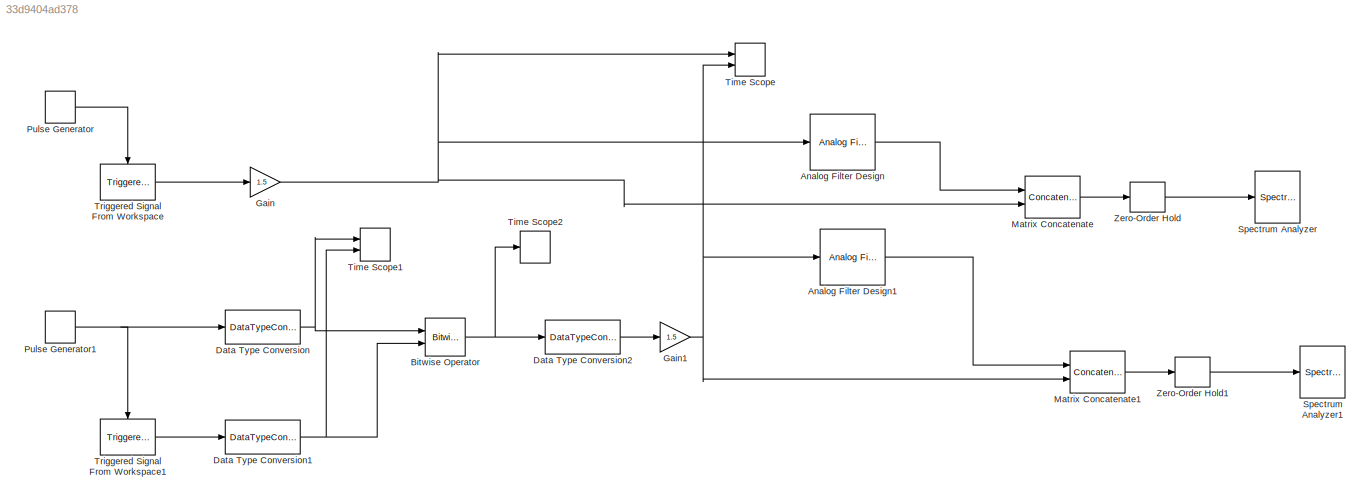
MODEL slx_33d9404ad378
KIND model
CONFIG AbsTol = auto
CONFIG FixedStep = auto
CONFIG MaxStep = auto
CONFIG MinStep = auto
CONFIG RelTol = 1e-3
CONFIG SampleTimeConstraint = Unconstrained
CONFIG Solver = ode45
CONFIG SolverMode = Auto
CONFIG SolverName = ode45
CONFIG StartTime = 0.0
CONFIG StopTime = 8
BLOCK [Reference] Analog Filter Design  REF=dsparch4/Analog
Filter Design
  N = 8
  Ports = [1, 1]
  Rp = 2
  Rs = 40
  SourceBlock = dsparch4/Analog\nFilter Design
  SourceType = Analog Filter Design
  Whi = 80
  Wlo = 2*pi*5
  filttype = Lowpass
  method = Chebyshev II
BLOCK [Reference] Analog Filter Design1  REF=dsparch4/Analog
Filter Design
  N = 8
  Ports = [1, 1]
  Rp = 2
  Rs = 40
  SourceBlock = dsparch4/Analog\nFilter Design
  SourceType = Analog Filter Design
  Whi = 80
  Wlo = 2*pi*5
  filttype = Lowpass
  method = Chebyshev II
BLOCK [Reference] Bitwise Operator  REF=simulink/Logic and Bit
Operations/Bitwise
Operator
  BitMask = bin2dec('11011001')
  BitMaskRealWorld = Stored Integer
  NumInputPorts = 2
  Ports = [2, 1]
  SourceBlock = simulink/Logic and Bit\nOperations/Bitwise\nOperator
  SourceType = Bitwise Operator
  UseBitMask = off
  logicop = XOR
BLOCK [DataTypeConversion] Data Type Conversion
  OutDataTypeStr = boolean
  RndMeth = Floor
  SaturateOnIntegerOverflow = off
BLOCK [DataTypeConversion] Data Type Conversion1
  OutDataTypeStr = boolean
  RndMeth = Floor
  SaturateOnIntegerOverflow = off
BLOCK [DataTypeConversion] Data Type Conversion2
  OutDataTypeStr = double
  RndMeth = Floor
  SaturateOnIntegerOverflow = off
BLOCK [Gain] Gain
  Gain = 1.5
  OutDataTypeStr = Inherit: Inherit via internal rule
  ParamDataTypeStr = Inherit: Inherit via internal rule
  SaturateOnIntegerOverflow = off
BLOCK [Gain] Gain1
  Gain = 1.5
  OutDataTypeStr = Inherit: Inherit via internal rule
  ParamDataTypeStr = Inherit: Inherit via internal rule
  SaturateOnIntegerOverflow = off
BLOCK [Concatenate] Matrix Concatenate
  ConcatenateDimension = 2
  Mode = Multidimensional array
  Ports = [2, 1]
BLOCK [Concatenate] Matrix Concatenate1
  ConcatenateDimension = 2
  Mode = Multidimensional array
  Ports = [2, 1]
BLOCK [DiscretePulseGenerator] Pulse Generator
  Amplitude = 0.5
  Period = 0.5
  Ports = [0, 1]
  PulseType = Time based
  PulseWidth = 50
BLOCK [DiscretePulseGenerator] Pulse Generator1
  Amplitude = 0.5
  Period = 0.5
  Ports = [0, 1]
  PulseType = Time based
  PulseWidth = 50
BLOCK [SpectrumAnalyzer] Spectrum Analyzer
  Ports = [1]
  ScopeSpecificationString = spbscopes.SpectrumAnalyzerBlockCfg('CurrentConfiguration', extmgr.ConfigurationSet(extmgr.Configuration('Core','General UI',true),extmgr.Configuration('Core','Source UI',true),extmgr.Configuration('Sources','WiredSimulink',true),extmgr.Configuration('Visuals','Spectrum',true,'AxesProperties',struct('Color',[0 0 0],'XColor',[0.686274509803922 0.686274509803922 0.686274509803922],'YColor',[0.6862745...<+6019ch>
BLOCK [SpectrumAnalyzer] Spectrum Analyzer1
  Ports = [1]
  ScopeSpecificationString = spbscopes.SpectrumAnalyzerBlockCfg('CurrentConfiguration', extmgr.ConfigurationSet(extmgr.Configuration('Core','General UI',true),extmgr.Configuration('Core','Source UI',true),extmgr.Configuration('Sources','WiredSimulink',true),extmgr.Configuration('Visuals','Spectrum',true,'AxesProperties',struct('Color',[0 0 0],'XColor',[0.686274509803922 0.686274509803922 0.686274509803922],'YColor',[0.6862745...<+5994ch>
BLOCK [TimeScope] Time Scope
  DefaultConfigurationName = spbscopes.TimeScopeBlockCfg
  NumInputPorts = 2
  Ports = [2]
  ScopeSpecificationString = spbscopes.TimeScopeBlockCfg('CurrentConfiguration', extmgr.ConfigurationSet(extmgr.Configuration('Core','General UI',true,'FigureColor',[0.156862745098039 0.156862745098039 0.156862745098039]),extmgr.Configuration('Core','Source UI',true),extmgr.Configuration('Sources','WiredSimulink',true),extmgr.Configuration('Visuals','Time Domain',true,'DisplayPropertyDefaults',struct('MinYLimReal','-0.1875','...<+1410ch>
  UserDataPersistent = on
BLOCK [TimeScope] Time Scope1
  DefaultConfigurationName = spbscopes.TimeScopeBlockCfg
  NumInputPorts = 2
  Ports = [2]
  ScopeSpecificationString = spbscopes.TimeScopeBlockCfg('CurrentConfiguration', extmgr.ConfigurationSet(extmgr.Configuration('Core','General UI',true,'FigureColor',[0.156862745098039 0.156862745098039 0.156862745098039]),extmgr.Configuration('Core','Source UI',true),extmgr.Configuration('Sources','WiredSimulink',true,'DataLoggingVariableName','ScopeData1'),extmgr.Configuration('Visuals','Time Domain',true,'DisplayPropertyDef...<+1474ch>
  UserDataPersistent = on
BLOCK [TimeScope] Time Scope2
  DefaultConfigurationName = spbscopes.TimeScopeBlockCfg
  NumInputPorts = 1
  Ports = [1]
  ScopeSpecificationString = spbscopes.TimeScopeBlockCfg('CurrentConfiguration', extmgr.ConfigurationSet(extmgr.Configuration('Core','General UI',true,'FigureColor',[0.156862745098039 0.156862745098039 0.156862745098039]),extmgr.Configuration('Core','Source UI',true),extmgr.Configuration('Sources','WiredSimulink',true,'DataLoggingVariableName','ScopeData2'),extmgr.Configuration('Visuals','Time Domain',true,'DisplayPropertyDef...<+1448ch>
  UserDataPersistent = on
BLOCK [Reference] Triggered Signal From Workspace  REF=dspsigops/Triggered Signal
From Workspace
  OutputAfterFinalValue = Setting to zero
  Ports = [0, 1, 0, 1]
  SamplesPerFrame = 1
  Signal = [1 0 1 0 0 0 1 1 1 0 1 1 0 0 0]
  SourceBlock = dspsigops/Triggered Signal\nFrom Workspace
  SourceType = Triggered Signal From Workspace
  TriggerType = Rising edge
  ic = 0
BLOCK [Reference] Triggered Signal From Workspace1  REF=dspsigops/Triggered Signal
From Workspace
  OutputAfterFinalValue = Setting to zero
  Ports = [0, 1, 0, 1]
  SamplesPerFrame = 1
  Signal = [1 0 1 0 0 0 1 1 1 0 1 1 0 0 0]
  SourceBlock = dspsigops/Triggered Signal\nFrom Workspace
  SourceType = Triggered Signal From Workspace
  TriggerType = Rising edge
  ic = 0
BLOCK [ZeroOrderHold] Zero-Order Hold
  SampleTime = 0.0025
BLOCK [ZeroOrderHold] Zero-Order Hold1
  SampleTime = 0.0025
LINE Analog Filter Design1:1 -> Matrix Concatenate1:1
LINE Analog Filter Design:1 -> Matrix Concatenate:1
NET Bitwise Operator:1 -> Data Type Conversion2:1, Time Scope2:1
NET Data Type Conversion1:1 -> Bitwise Operator:2, Time Scope1:2
LINE Data Type Conversion2:1 -> Gain1:1
NET Data Type Conversion:1 -> Bitwise Operator:1, Time Scope1:1
NET Gain1:1 -> Analog Filter Design1:1, Matrix Concatenate1:2, Time Scope:2
NET Gain:1 -> Analog Filter Design:1, Matrix Concatenate:2, Time Scope:1
LINE Matrix Concatenate1:1 -> Zero-Order Hold1:1
LINE Matrix Concatenate:1 -> Zero-Order Hold:1
NET Pulse Generator1:1 -> Data Type Conversion:1, Triggered Signal From Workspace1:trigger
LINE Pulse Generator:1 -> Triggered Signal From Workspace:trigger
LINE Triggered Signal From Workspace1:1 -> Data Type Conversion1:1
LINE Triggered Signal From Workspace:1 -> Gain:1
LINE Zero-Order Hold1:1 -> Spectrum Analyzer1:1
LINE Zero-Order Hold:1 -> Spectrum Analyzer:1
note: NET lines group one-source signal fan-out (src -> all destinations, sorted); 1:1 wires keep LINE
